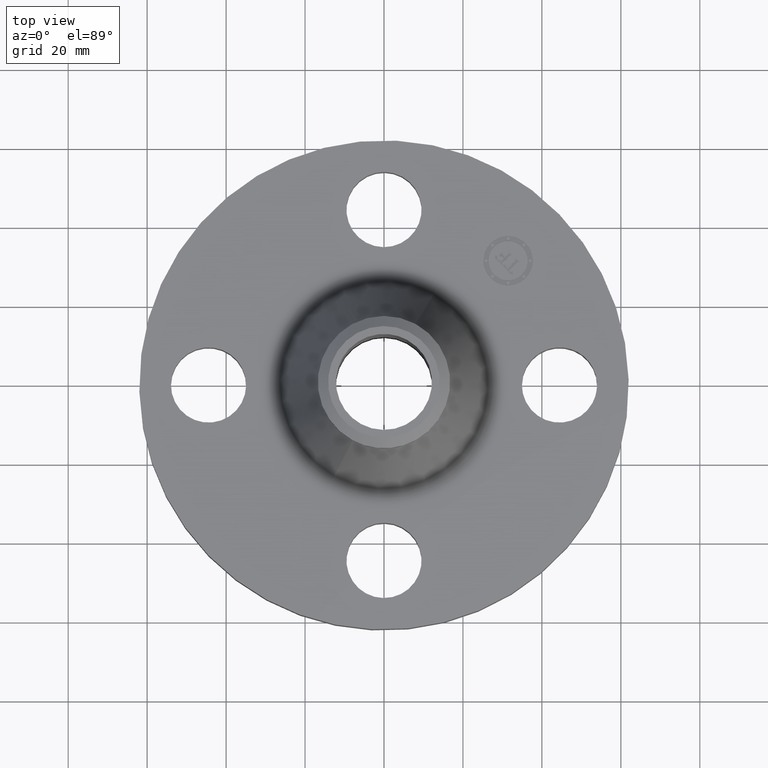
[diagram: clean part render]
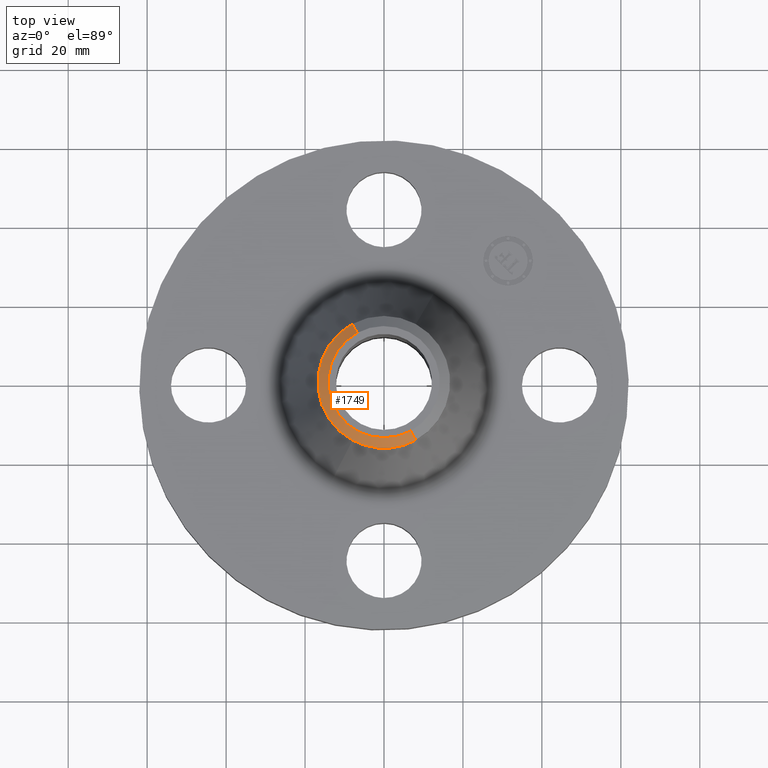
[diagram: same view with one face highlighted and labeled with its STEP entity id]
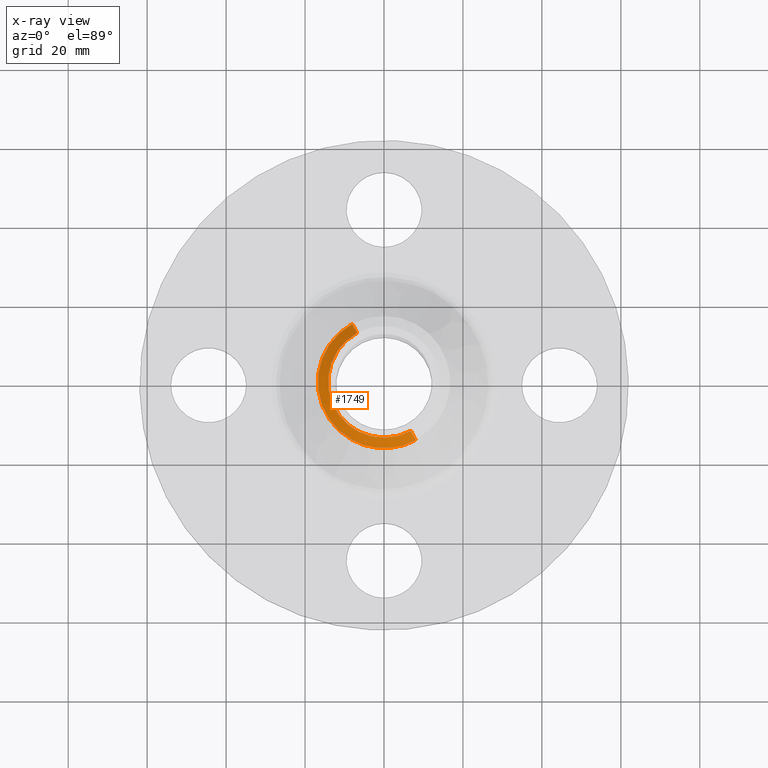
[diagram: x-ray of the same camera — body ghosted, the highlighted face saturated]
A machine part, top view. The second image highlights one B-rep face of the part: STEP entity #1749.
The next image is the same camera in x-ray: the body ghosted, the highlighted face saturated — about 0% of this face is hidden behind the body in this view.
In plain terms, the highlighted conical surface has half-angle 52.5 deg.
Its self-contained STEP definition (entity closure, byte-faithful):
#1046=AXIS2_PLACEMENT_3D('Circle Axis2P3D',#1044,#1045,$) ;
#1086=AXIS2_PLACEMENT_3D('Circle Axis2P3D',#1084,#1085,$) ;
#1131=AXIS2_PLACEMENT_3D('Circle Axis2P3D',#1129,#1130,$) ;
#1740=AXIS2_PLACEMENT_3D('Cone Axis2P3D',#1737,#1738,#1739) ;
#1039=CARTESIAN_POINT('Vertex',(0.267155162633,-0.489024244991,2.38000000001)) ;
#1041=CARTESIAN_POINT('Vertex',(-0.267155162633,0.489024244991,2.38000000001)) ;
#1044=CARTESIAN_POINT('Axis2P3D Location',(3.08536048853E-011,2.84245068427E-012,2.38000000001)) ;
#1081=CARTESIAN_POINT('Vertex',(-0.31642085548,-0.57920449085,2.30114959959)) ;
#1084=CARTESIAN_POINT('Axis2P3D Location',(0.,0.,2.30114959959)) ;
#1088=CARTESIAN_POINT('Vertex',(-0.31642085548,0.57920449085,2.30114959959)) ;
#1126=CARTESIAN_POINT('Vertex',(0.316420855481,-0.579204490851,2.30114959956)) ;
#1129=CARTESIAN_POINT('Axis2P3D Location',(0.,0.,2.30114959959)) ;
#1712=CARTESIAN_POINT('Line Origine',(-0.291788009056,0.53411436792,2.34057479979)) ;
#1717=CARTESIAN_POINT('Line Origine',(0.291788009056,-0.53411436792,2.34057479979)) ;
#1737=CARTESIAN_POINT('Axis2P3D Location',(0.,0.,2.38000000001)) ;
#1045=DIRECTION('Axis2P3D Direction',(0.,0.,-0.0393700787402)) ;
#1085=DIRECTION('Axis2P3D Direction',(-0.,0.,-0.0393700787402)) ;
#1130=DIRECTION('Axis2P3D Direction',(-0.,0.,-0.0393700787402)) ;
#1713=DIRECTION('Vector Direction',(-0.014974561121,0.02741075027,-0.023966985394)) ;
#1718=DIRECTION('Vector Direction',(0.014974561121,-0.02741075027,-0.023966985394)) ;
#1738=DIRECTION('Axis2P3D Direction',(-0.,-0.,-0.0393700787402)) ;
#1739=DIRECTION('Axis2P3D XDirection',(0.0188750212049,-0.0345504945626,0.)) ;
#1714=VECTOR('Line Direction',#1713,0.0393700787402) ;
#1719=VECTOR('Line Direction',#1718,0.0393700787402) ;
#1743=ORIENTED_EDGE('',*,*,#1721,.F.) ;
#1744=ORIENTED_EDGE('',*,*,#1048,.F.) ;
#1745=ORIENTED_EDGE('',*,*,#1716,.T.) ;
#1746=ORIENTED_EDGE('',*,*,#1090,.T.) ;
#1747=ORIENTED_EDGE('',*,*,#1133,.F.) ;
#1749=ADVANCED_FACE('PartBody',(#1748),#1741,.T.) ;
#1047=CIRCLE('generated circle',#1046,0.557240157504) ;
#1087=CIRCLE('generated circle',#1086,0.660000000003) ;
#1132=CIRCLE('generated circle',#1131,0.660000000003) ;
#1741=CONICAL_SURFACE('Cone',#1740,0.557240157482,0.916297857297) ;
#1048=EDGE_CURVE('',#1042,#1040,#1047,.F.) ;
#1090=EDGE_CURVE('',#1089,#1082,#1087,.F.) ;
#1133=EDGE_CURVE('',#1127,#1082,#1132,.T.) ;
#1716=EDGE_CURVE('',#1042,#1089,#1715,.T.) ;
#1721=EDGE_CURVE('',#1040,#1127,#1720,.T.) ;
#1742=EDGE_LOOP('',(#1743,#1744,#1745,#1746,#1747)) ;
#1748=FACE_OUTER_BOUND('',#1742,.T.) ;
#1715=LINE('Line',#1712,#1714) ;
#1720=LINE('Line',#1717,#1719) ;
#1040=VERTEX_POINT('',#1039) ;
#1042=VERTEX_POINT('',#1041) ;
#1082=VERTEX_POINT('',#1081) ;
#1089=VERTEX_POINT('',#1088) ;
#1127=VERTEX_POINT('',#1126) ;